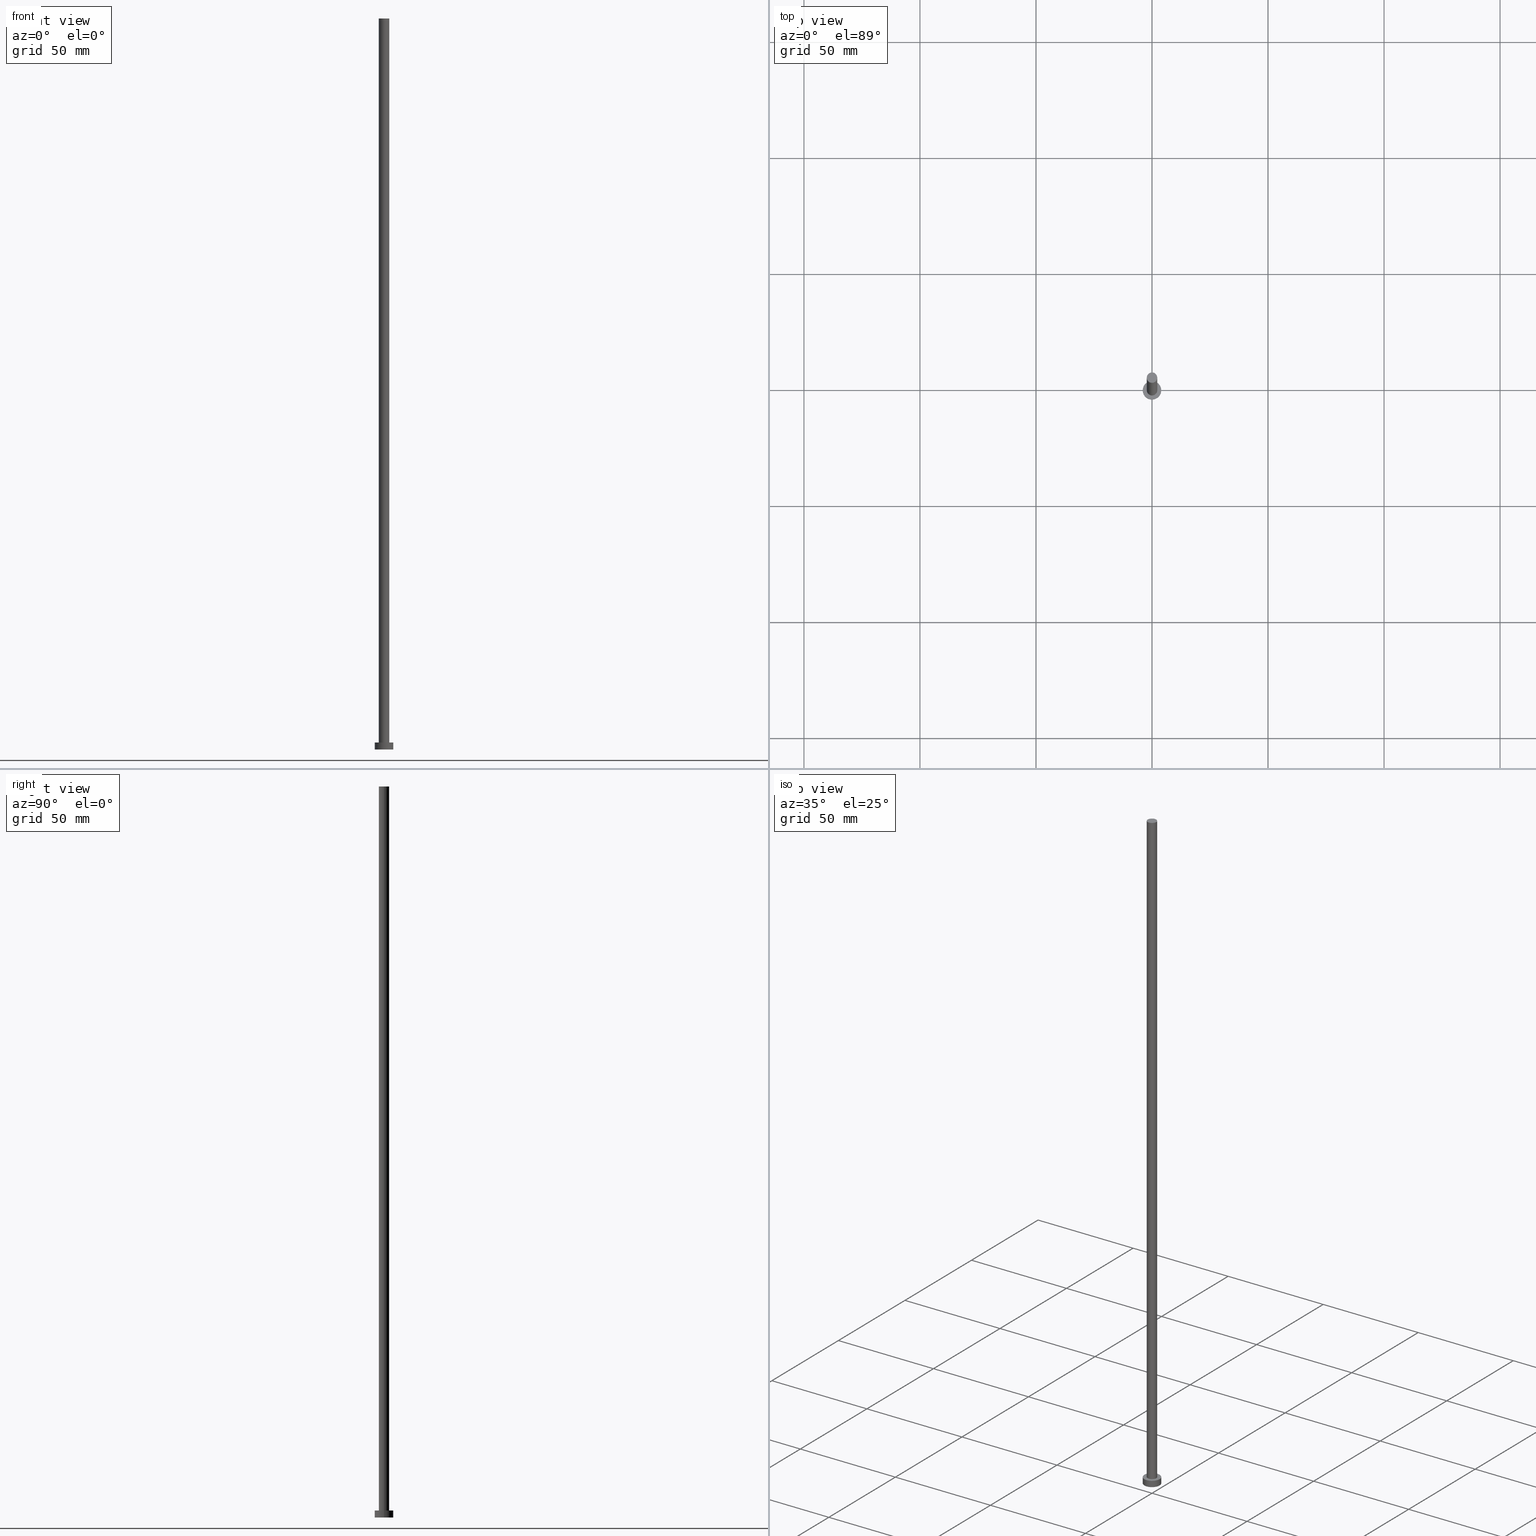
[diagram: canonical four-view strip — front | top / right | iso, engineering-drawing reading convention]
A machine part, canonical four-view strip (front | top / right | iso — engineering-drawing reading convention). The complete STEP part file that produces these views, byte-faithful:
ISO-10303-21;
HEADER;
FILE_DESCRIPTION (( 'STEP AP203' ),
    '1' );
FILE_NAME ('df20.STEP',
    '2023-02-13T16:06:10',
    ( '' ),
    ( '' ),
    'SwSTEP 2.0',
    'SolidWorks 2019',
    '' );
FILE_SCHEMA (( 'CONFIG_CONTROL_DESIGN' ));
ENDSEC;

DATA;
#1 = PERSON_AND_ORGANIZATION_ROLE ( 'creator' ) ;
#2 = ORIENTED_EDGE ( 'NONE', *, *, #96, .F. ) ;
#3 = VERTEX_POINT ( 'NONE', #112 ) ;
#4 = CC_DESIGN_PERSON_AND_ORGANIZATION_ASSIGNMENT ( #253, #198, ( #84 ) ) ;
#5 = DIRECTION ( 'NONE',  ( 1.000000000000000000, 0.000000000000000000, -0.000000000000000000 ) ) ;
#6 = APPROVAL_PERSON_ORGANIZATION ( #58, #195, #106 ) ;
#7 = DIRECTION ( 'NONE',  ( -0.000000000000000000, -0.000000000000000000, -1.000000000000000000 ) ) ;
#8 = ORIENTED_EDGE ( 'NONE', *, *, #80, .F. ) ;
#9 = DIRECTION ( 'NONE',  ( 0.000000000000000000, 0.000000000000000000, 1.000000000000000000 ) ) ;
#10 = VECTOR ( 'NONE', #14, 1000.000000000000000 ) ;
#11 = DIRECTION ( 'NONE',  ( 0.000000000000000000, 0.000000000000000000, 1.000000000000000000 ) ) ;
#12 = CARTESIAN_POINT ( 'NONE',  ( -2.250000000000000000, 0.000000000000000000, 315.0000000000000000 ) ) ;
#13 = FACE_OUTER_BOUND ( 'NONE', #109, .T. ) ;
#14 = DIRECTION ( 'NONE',  ( -0.000000000000000000, -0.000000000000000000, -1.000000000000000000 ) ) ;
#15 = AXIS2_PLACEMENT_3D ( 'NONE', #137, #235, #30 ) ;
#16 = CIRCLE ( 'NONE', #216, 4.000000000000000000 ) ;
#17 = EDGE_LOOP ( 'NONE', ( #83, #107, #42, #129 ) ) ;
#18 = APPROVAL_STATUS ( 'not_yet_approved' ) ;
#19 = AXIS2_PLACEMENT_3D ( 'NONE', #230, #187, #5 ) ;
#20 = ORIENTED_EDGE ( 'NONE', *, *, #159, .F. ) ;
#21 =( LENGTH_UNIT ( ) NAMED_UNIT ( * ) SI_UNIT ( .MILLI., .METRE. ) );
#22 = EDGE_LOOP ( 'NONE', ( #185, #186 ) ) ;
#23 = EDGE_CURVE ( 'NONE', #79, #3, #91, .T. ) ;
#24 = SHAPE_DEFINITION_REPRESENTATION ( #85, #169 ) ;
#25 = APPROVAL_PERSON_ORGANIZATION ( #223, #27, #204 ) ;
#26 = COORDINATED_UNIVERSAL_TIME_OFFSET ( 1, 0, .AHEAD. ) ;
#27 = APPROVAL ( #205, 'NEUR�EN�' ) ;
#28 = CYLINDRICAL_SURFACE ( 'NONE', #207, 4.000000000000000000 ) ;
#29 = DIRECTION ( 'NONE',  ( -0.000000000000000000, -0.000000000000000000, -1.000000000000000000 ) ) ;
#30 = DIRECTION ( 'NONE',  ( 1.000000000000000000, 0.000000000000000000, 0.000000000000000000 ) ) ;
#31 = CIRCLE ( 'NONE', #69, 2.250000000000000000 ) ;
#32 = AXIS2_PLACEMENT_3D ( 'NONE', #234, #249, #67 ) ;
#33 = UNCERTAINTY_MEASURE_WITH_UNIT (LENGTH_MEASURE( 1.000000000000000082E-05 ), #21, 'distance_accuracy_value', 'NONE');
#34 = DIRECTION ( 'NONE',  ( 1.000000000000000000, 0.000000000000000000, 0.000000000000000000 ) ) ;
#35 = CYLINDRICAL_SURFACE ( 'NONE', #146, 4.000000000000000000 ) ;
#36 = ADVANCED_FACE ( 'NONE', ( #86 ), #87, .F. ) ;
#37 = DIRECTION ( 'NONE',  ( -1.000000000000000000, 0.000000000000000000, 0.000000000000000000 ) ) ;
#38 = ADVANCED_FACE ( 'NONE', ( #88 ), #28, .T. ) ;
#39 =( NAMED_UNIT ( * ) PLANE_ANGLE_UNIT ( ) SI_UNIT ( $, .RADIAN. ) );
#40 = VECTOR ( 'NONE', #167, 1000.000000000000000 ) ;
#41 = SECURITY_CLASSIFICATION_LEVEL ( 'unclassified' ) ;
#42 = ORIENTED_EDGE ( 'NONE', *, *, #184, .T. ) ;
#43 = CALENDAR_DATE ( 2023, 13, 2 ) ;
#44 = VERTEX_POINT ( 'NONE', #170 ) ;
#45 = LOCAL_TIME ( 17, 6, 10.00000000000000000, #26 ) ;
#46 = PERSON_AND_ORGANIZATION ( #68, #163 ) ;
#47 = DATE_AND_TIME ( #82, #45 ) ;
#48 = ORIENTED_EDGE ( 'NONE', *, *, #245, .F. ) ;
#49 = ORIENTED_EDGE ( 'NONE', *, *, #113, .F. ) ;
#50 = PRODUCT_RELATED_PRODUCT_CATEGORY ( 'detail', '', ( #227 ) ) ;
#51 = LOCAL_TIME ( 17, 6, 10.00000000000000000, #76 ) ;
#52 = CARTESIAN_POINT ( 'NONE',  ( -4.000000000000000000, 0.000000000000000000, 3.000000000000000000 ) ) ;
#53 = DIRECTION ( 'NONE',  ( 0.000000000000000000, 0.000000000000000000, 1.000000000000000000 ) ) ;
#54 = CARTESIAN_POINT ( 'NONE',  ( 4.000000000000000000, 4.898587196589412829E-16, 3.000000000000000000 ) ) ;
#55 = CIRCLE ( 'NONE', #149, 4.000000000000000000 ) ;
#56 = CARTESIAN_POINT ( 'NONE',  ( 0.000000000000000000, 0.000000000000000000, 3.000000000000000000 ) ) ;
#57 = FACE_OUTER_BOUND ( 'NONE', #209, .T. ) ;
#58 = PERSON_AND_ORGANIZATION ( #68, #163 ) ;
#59 = EDGE_CURVE ( 'NONE', #44, #73, #152, .T. ) ;
#60 = MECHANICAL_CONTEXT ( 'NONE', #131, 'mechanical' ) ;
#61 = CLOSED_SHELL ( 'NONE', ( #108, #38, #220, #193, #36, #66, #154 ) ) ;
#62 = APPLICATION_PROTOCOL_DEFINITION ( 'international standard', 'config_control_design', 1994, #131 ) ;
#63 = ORIENTED_EDGE ( 'NONE', *, *, #23, .F. ) ;
#64 = DIRECTION ( 'NONE',  ( 1.000000000000000000, 0.000000000000000000, 0.000000000000000000 ) ) ;
#65 = CC_DESIGN_SECURITY_CLASSIFICATION ( #103, ( #84 ) ) ;
#66 = ADVANCED_FACE ( 'NONE', ( #13 ), #70, .T. ) ;
#67 = DIRECTION ( 'NONE',  ( 1.000000000000000000, 0.000000000000000000, -0.000000000000000000 ) ) ;
#68 = PERSON ( 'NEUR�EN�', 'NEUR�EN�', 'NEUR�EN�', ('NEUR�EN�'), ('NEUR�EN�'), ('NEUR�EN�') ) ;
#69 = AXIS2_PLACEMENT_3D ( 'NONE', #71, #194, #218 ) ;
#70 = CYLINDRICAL_SURFACE ( 'NONE', #118, 2.250000000000000000 ) ;
#71 = CARTESIAN_POINT ( 'NONE',  ( 0.000000000000000000, 0.000000000000000000, 315.0000000000000000 ) ) ;
#72 = CARTESIAN_POINT ( 'NONE',  ( -2.250000000000000000, 0.000000000000000000, 3.000000000000000000 ) ) ;
#73 = VERTEX_POINT ( 'NONE', #72 ) ;
#74 =( NAMED_UNIT ( * ) SI_UNIT ( $, .STERADIAN. ) SOLID_ANGLE_UNIT ( ) );
#75 = ORIENTED_EDGE ( 'NONE', *, *, #242, .T. ) ;
#76 = COORDINATED_UNIVERSAL_TIME_OFFSET ( 1, 0, .AHEAD. ) ;
#77 = DATE_TIME_ROLE ( 'classification_date' ) ;
#78 = DIRECTION ( 'NONE',  ( 0.000000000000000000, 0.000000000000000000, 1.000000000000000000 ) ) ;
#79 = VERTEX_POINT ( 'NONE', #232 ) ;
#80 = EDGE_CURVE ( 'NONE', #179, #228, #95, .T. ) ;
#81 = DATE_AND_TIME ( #239, #197 ) ;
#82 = CALENDAR_DATE ( 2023, 13, 2 ) ;
#83 = ORIENTED_EDGE ( 'NONE', *, *, #150, .F. ) ;
#84 = PRODUCT_DEFINITION_FORMATION_WITH_SPECIFIED_SOURCE ( 'LIBOVOLN�', '', #227, .NOT_KNOWN. ) ;
#85 = PRODUCT_DEFINITION_SHAPE ( 'NONE', 'NONE',  #92 ) ;
#86 = FACE_OUTER_BOUND ( 'NONE', #22, .T. ) ;
#87 = PLANE ( 'NONE',  #19 ) ;
#88 = FACE_OUTER_BOUND ( 'NONE', #229, .T. ) ;
#89 = CC_DESIGN_PERSON_AND_ORGANIZATION_ASSIGNMENT ( #219, #123, ( #84 ) ) ;
#90 = CC_DESIGN_APPROVAL ( #27, ( #92 ) ) ;
#91 = LINE ( 'NONE', #133, #40 ) ;
#92 = PRODUCT_DEFINITION ( 'NEZN�M�', '', #84, #155 ) ;
#93 = DIRECTION ( 'NONE',  ( 0.000000000000000000, 0.000000000000000000, 1.000000000000000000 ) ) ;
#94 = FACE_OUTER_BOUND ( 'NONE', #104, .T. ) ;
#95 = LINE ( 'NONE', #52, #236 ) ;
#96 = EDGE_CURVE ( 'NONE', #115, #179, #55, .T. ) ;
#97 = CARTESIAN_POINT ( 'NONE',  ( 0.000000000000000000, 0.000000000000000000, 3.000000000000000000 ) ) ;
#98 = CIRCLE ( 'NONE', #15, 2.250000000000000000 ) ;
#99 = MANIFOLD_SOLID_BREP ( 'P�idat vysunut�m3', #61 ) ;
#100 = DIRECTION ( 'NONE',  ( -1.000000000000000000, 0.000000000000000000, 0.000000000000000000 ) ) ;
#101 = COORDINATED_UNIVERSAL_TIME_OFFSET ( 1, 0, .AHEAD. ) ;
#102 = APPROVAL_STATUS ( 'not_yet_approved' ) ;
#103 = SECURITY_CLASSIFICATION ( '', '', #41 ) ;
#104 = EDGE_LOOP ( 'NONE', ( #183, #143 ) ) ;
#105 = ORIENTED_EDGE ( 'NONE', *, *, #184, .F. ) ;
#106 = APPROVAL_ROLE ( '' ) ;
#107 = ORIENTED_EDGE ( 'NONE', *, *, #23, .T. ) ;
#108 = ADVANCED_FACE ( 'NONE', ( #233 ), #117, .T. ) ;
#109 = EDGE_LOOP ( 'NONE', ( #63, #127, #224, #164 ) ) ;
#110 = CIRCLE ( 'NONE', #251, 2.250000000000000000 ) ;
#111 = CC_DESIGN_PERSON_AND_ORGANIZATION_ASSIGNMENT ( #145, #1, ( #92 ) ) ;
#112 = CARTESIAN_POINT ( 'NONE',  ( 2.250000000000000000, 2.755455298081544285E-16, 3.000000000000000000 ) ) ;
#113 = EDGE_CURVE ( 'NONE', #73, #3, #175, .T. ) ;
#114 = CARTESIAN_POINT ( 'NONE',  ( 0.000000000000000000, 0.000000000000000000, 3.000000000000000000 ) ) ;
#115 = VERTEX_POINT ( 'NONE', #54 ) ;
#116 = DIRECTION ( 'NONE',  ( 1.000000000000000000, 0.000000000000000000, -0.000000000000000000 ) ) ;
#117 = CYLINDRICAL_SURFACE ( 'NONE', #148, 2.250000000000000000 ) ;
#118 = AXIS2_PLACEMENT_3D ( 'NONE', #192, #158, #215 ) ;
#119 = CARTESIAN_POINT ( 'NONE',  ( 0.000000000000000000, 0.000000000000000000, 3.000000000000000000 ) ) ;
#120 = DIRECTION ( 'NONE',  ( -0.000000000000000000, -0.000000000000000000, -1.000000000000000000 ) ) ;
#121 = DIRECTION ( 'NONE',  ( 0.000000000000000000, 0.000000000000000000, 1.000000000000000000 ) ) ;
#122 = CC_DESIGN_APPROVAL ( #188, ( #103 ) ) ;
#123 = PERSON_AND_ORGANIZATION_ROLE ( 'creator' ) ;
#124 = CC_DESIGN_DATE_AND_TIME_ASSIGNMENT ( #81, #222, ( #92 ) ) ;
#125 = PERSON_AND_ORGANIZATION ( #68, #163 ) ;
#126 = DATE_AND_TIME ( #43, #51 ) ;
#127 = ORIENTED_EDGE ( 'NONE', *, *, #168, .F. ) ;
#128 = COORDINATED_UNIVERSAL_TIME_OFFSET ( 1, 0, .AHEAD. ) ;
#129 = ORIENTED_EDGE ( 'NONE', *, *, #59, .F. ) ;
#130 = CARTESIAN_POINT ( 'NONE',  ( 0.000000000000000000, 0.000000000000000000, 3.000000000000000000 ) ) ;
#131 = APPLICATION_CONTEXT ( 'configuration controlled 3d designs of mechanical parts and assemblies' ) ;
#132 = EDGE_LOOP ( 'NONE', ( #49, #105 ) ) ;
#133 = CARTESIAN_POINT ( 'NONE',  ( 2.250000000000000000, 2.755455298081544285E-16, 315.0000000000000000 ) ) ;
#134 = AXIS2_PLACEMENT_3D ( 'NONE', #250, #121, #142 ) ;
#135 = CARTESIAN_POINT ( 'NONE',  ( 0.000000000000000000, 0.000000000000000000, 3.000000000000000000 ) ) ;
#136 = FACE_OUTER_BOUND ( 'NONE', #161, .T. ) ;
#137 = CARTESIAN_POINT ( 'NONE',  ( 0.000000000000000000, 0.000000000000000000, 315.0000000000000000 ) ) ;
#138 = DIRECTION ( 'NONE',  ( 1.000000000000000000, 0.000000000000000000, 0.000000000000000000 ) ) ;
#139 = CARTESIAN_POINT ( 'NONE',  ( 0.000000000000000000, 0.000000000000000000, 315.0000000000000000 ) ) ;
#140 = APPROVAL_DATE_TIME ( #252, #195 ) ;
#141 = APPROVAL_DATE_TIME ( #126, #27 ) ;
#142 = DIRECTION ( 'NONE',  ( 1.000000000000000000, 0.000000000000000000, 0.000000000000000000 ) ) ;
#143 = ORIENTED_EDGE ( 'NONE', *, *, #96, .T. ) ;
#144 = DIRECTION ( 'NONE',  ( 0.000000000000000000, 0.000000000000000000, 1.000000000000000000 ) ) ;
#145 = PERSON_AND_ORGANIZATION ( #68, #163 ) ;
#146 = AXIS2_PLACEMENT_3D ( 'NONE', #97, #120, #37 ) ;
#147 = ORIENTED_EDGE ( 'NONE', *, *, #150, .T. ) ;
#148 = AXIS2_PLACEMENT_3D ( 'NONE', #139, #172, #100 ) ;
#149 = AXIS2_PLACEMENT_3D ( 'NONE', #135, #247, #34 ) ;
#150 = EDGE_CURVE ( 'NONE', #79, #44, #98, .T. ) ;
#151 = FACE_BOUND ( 'NONE', #132, .T. ) ;
#152 = LINE ( 'NONE', #12, #10 ) ;
#153 = PLANE ( 'NONE',  #32 ) ;
#154 = ADVANCED_FACE ( 'NONE', ( #136 ), #153, .T. ) ;
#155 = DESIGN_CONTEXT ( 'detailed design', #244, 'design' ) ;
#156 = DIRECTION ( 'NONE',  ( -0.000000000000000000, -0.000000000000000000, -1.000000000000000000 ) ) ;
#157 = LOCAL_TIME ( 17, 6, 10.00000000000000000, #226 ) ;
#158 = DIRECTION ( 'NONE',  ( -0.000000000000000000, -0.000000000000000000, -1.000000000000000000 ) ) ;
#159 = EDGE_CURVE ( 'NONE', #115, #203, #214, .T. ) ;
#160 = PERSON_AND_ORGANIZATION ( #68, #163 ) ;
#161 = EDGE_LOOP ( 'NONE', ( #174, #147 ) ) ;
#162 = VECTOR ( 'NONE', #29, 1000.000000000000000 ) ;
#163 = ORGANIZATION ( 'NEUR�EN�', 'NEUR�EN�', '' ) ;
#164 = ORIENTED_EDGE ( 'NONE', *, *, #113, .T. ) ;
#165 = CC_DESIGN_PERSON_AND_ORGANIZATION_ASSIGNMENT ( #46, #225, ( #227 ) ) ;
#166 = APPROVAL_DATE_TIME ( #47, #188 ) ;
#167 = DIRECTION ( 'NONE',  ( -0.000000000000000000, -0.000000000000000000, -1.000000000000000000 ) ) ;
#168 = EDGE_CURVE ( 'NONE', #44, #79, #31, .T. ) ;
#169 = ADVANCED_BREP_SHAPE_REPRESENTATION ( 'df20', ( #99, #243 ), #246 ) ;
#170 = CARTESIAN_POINT ( 'NONE',  ( -2.250000000000000000, 0.000000000000000000, 315.0000000000000000 ) ) ;
#171 = CARTESIAN_POINT ( 'NONE',  ( 0.000000000000000000, 0.000000000000000000, 3.000000000000000000 ) ) ;
#172 = DIRECTION ( 'NONE',  ( -0.000000000000000000, -0.000000000000000000, -1.000000000000000000 ) ) ;
#173 = CARTESIAN_POINT ( 'NONE',  ( -4.000000000000000000, 0.000000000000000000, 0.000000000000000000 ) ) ;
#174 = ORIENTED_EDGE ( 'NONE', *, *, #168, .T. ) ;
#175 = CIRCLE ( 'NONE', #211, 2.250000000000000000 ) ;
#176 = CIRCLE ( 'NONE', #181, 4.000000000000000000 ) ;
#177 = DIRECTION ( 'NONE',  ( 1.000000000000000000, 0.000000000000000000, 0.000000000000000000 ) ) ;
#178 = APPLICATION_PROTOCOL_DEFINITION ( 'international standard', 'config_control_design', 1994, #244 ) ;
#179 = VERTEX_POINT ( 'NONE', #191 ) ;
#180 = CALENDAR_DATE ( 2023, 13, 2 ) ;
#181 = AXIS2_PLACEMENT_3D ( 'NONE', #190, #93, #248 ) ;
#182 = CC_DESIGN_PERSON_AND_ORGANIZATION_ASSIGNMENT ( #125, #199, ( #103 ) ) ;
#183 = ORIENTED_EDGE ( 'NONE', *, *, #245, .T. ) ;
#184 = EDGE_CURVE ( 'NONE', #3, #73, #110, .T. ) ;
#185 = ORIENTED_EDGE ( 'NONE', *, *, #201, .F. ) ;
#186 = ORIENTED_EDGE ( 'NONE', *, *, #242, .F. ) ;
#187 = DIRECTION ( 'NONE',  ( 0.000000000000000000, 0.000000000000000000, 1.000000000000000000 ) ) ;
#188 = APPROVAL ( #102, 'NEUR�EN�' ) ;
#189 = ORIENTED_EDGE ( 'NONE', *, *, #80, .T. ) ;
#190 = CARTESIAN_POINT ( 'NONE',  ( 0.000000000000000000, 0.000000000000000000, 0.000000000000000000 ) ) ;
#191 = CARTESIAN_POINT ( 'NONE',  ( -4.000000000000000000, 0.000000000000000000, 3.000000000000000000 ) ) ;
#192 = CARTESIAN_POINT ( 'NONE',  ( 0.000000000000000000, 0.000000000000000000, 315.0000000000000000 ) ) ;
#193 = ADVANCED_FACE ( 'NONE', ( #151, #94 ), #217, .T. ) ;
#194 = DIRECTION ( 'NONE',  ( 0.000000000000000000, 0.000000000000000000, 1.000000000000000000 ) ) ;
#195 = APPROVAL ( #18, 'NEUR�EN�' ) ;
#196 = DIRECTION ( 'NONE',  ( -1.000000000000000000, 0.000000000000000000, 0.000000000000000000 ) ) ;
#197 = LOCAL_TIME ( 17, 6, 10.00000000000000000, #128 ) ;
#198 = PERSON_AND_ORGANIZATION_ROLE ( 'design_supplier' ) ;
#199 = PERSON_AND_ORGANIZATION_ROLE ( 'classification_officer' ) ;
#200 = ORIENTED_EDGE ( 'NONE', *, *, #159, .T. ) ;
#201 = EDGE_CURVE ( 'NONE', #228, #203, #176, .T. ) ;
#202 = CALENDAR_DATE ( 2023, 13, 2 ) ;
#203 = VERTEX_POINT ( 'NONE', #238 ) ;
#204 = APPROVAL_ROLE ( '' ) ;
#205 = APPROVAL_STATUS ( 'not_yet_approved' ) ;
#206 = APPROVAL_ROLE ( '' ) ;
#207 = AXIS2_PLACEMENT_3D ( 'NONE', #114, #7, #196 ) ;
#208 = CC_DESIGN_APPROVAL ( #195, ( #84 ) ) ;
#209 = EDGE_LOOP ( 'NONE', ( #20, #48, #189, #254 ) ) ;
#210 = CC_DESIGN_DATE_AND_TIME_ASSIGNMENT ( #255, #77, ( #103 ) ) ;
#211 = AXIS2_PLACEMENT_3D ( 'NONE', #119, #53, #177 ) ;
#212 = AXIS2_PLACEMENT_3D ( 'NONE', #171, #9, #116 ) ;
#213 = CARTESIAN_POINT ( 'NONE',  ( 4.000000000000000000, 4.898587196589412829E-16, 3.000000000000000000 ) ) ;
#214 = LINE ( 'NONE', #213, #162 ) ;
#215 = DIRECTION ( 'NONE',  ( -1.000000000000000000, 0.000000000000000000, 0.000000000000000000 ) ) ;
#216 = AXIS2_PLACEMENT_3D ( 'NONE', #130, #78, #241 ) ;
#217 = PLANE ( 'NONE',  #212 ) ;
#218 = DIRECTION ( 'NONE',  ( 1.000000000000000000, 0.000000000000000000, 0.000000000000000000 ) ) ;
#219 = PERSON_AND_ORGANIZATION ( #68, #163 ) ;
#220 = ADVANCED_FACE ( 'NONE', ( #57 ), #35, .T. ) ;
#221 = APPROVAL_PERSON_ORGANIZATION ( #160, #188, #206 ) ;
#222 = DATE_TIME_ROLE ( 'creation_date' ) ;
#223 = PERSON_AND_ORGANIZATION ( #68, #163 ) ;
#224 = ORIENTED_EDGE ( 'NONE', *, *, #59, .T. ) ;
#225 = PERSON_AND_ORGANIZATION_ROLE ( 'design_owner' ) ;
#226 = COORDINATED_UNIVERSAL_TIME_OFFSET ( 1, 0, .AHEAD. ) ;
#227 = PRODUCT ( 'df20', 'df20', '', ( #60 ) ) ;
#228 = VERTEX_POINT ( 'NONE', #173 ) ;
#229 = EDGE_LOOP ( 'NONE', ( #2, #200, #75, #8 ) ) ;
#230 = CARTESIAN_POINT ( 'NONE',  ( 0.000000000000000000, 0.000000000000000000, 0.000000000000000000 ) ) ;
#231 = LOCAL_TIME ( 17, 6, 10.00000000000000000, #101 ) ;
#232 = CARTESIAN_POINT ( 'NONE',  ( 2.250000000000000000, 2.755455298081544285E-16, 315.0000000000000000 ) ) ;
#233 = FACE_OUTER_BOUND ( 'NONE', #17, .T. ) ;
#234 = CARTESIAN_POINT ( 'NONE',  ( 0.000000000000000000, 0.000000000000000000, 315.0000000000000000 ) ) ;
#235 = DIRECTION ( 'NONE',  ( 0.000000000000000000, 0.000000000000000000, 1.000000000000000000 ) ) ;
#236 = VECTOR ( 'NONE', #156, 1000.000000000000000 ) ;
#237 = CIRCLE ( 'NONE', #134, 4.000000000000000000 ) ;
#238 = CARTESIAN_POINT ( 'NONE',  ( 4.000000000000000000, 4.898587196589412829E-16, 0.000000000000000000 ) ) ;
#239 = CALENDAR_DATE ( 2023, 13, 2 ) ;
#240 = CARTESIAN_POINT ( 'NONE',  ( 0.000000000000000000, 0.000000000000000000, 0.000000000000000000 ) ) ;
#241 = DIRECTION ( 'NONE',  ( 1.000000000000000000, 0.000000000000000000, 0.000000000000000000 ) ) ;
#242 = EDGE_CURVE ( 'NONE', #203, #228, #237, .T. ) ;
#243 = AXIS2_PLACEMENT_3D ( 'NONE', #240, #144, #64 ) ;
#244 = APPLICATION_CONTEXT ( 'configuration controlled 3d designs of mechanical parts and assemblies' ) ;
#245 = EDGE_CURVE ( 'NONE', #179, #115, #16, .T. ) ;
#246 =( GEOMETRIC_REPRESENTATION_CONTEXT ( 3 ) GLOBAL_UNCERTAINTY_ASSIGNED_CONTEXT ( ( #33 ) ) GLOBAL_UNIT_ASSIGNED_CONTEXT ( ( #21, #39, #74 ) ) REPRESENTATION_CONTEXT ( 'NONE', 'WORKASPACE' ) );
#247 = DIRECTION ( 'NONE',  ( 0.000000000000000000, 0.000000000000000000, 1.000000000000000000 ) ) ;
#248 = DIRECTION ( 'NONE',  ( 1.000000000000000000, 0.000000000000000000, 0.000000000000000000 ) ) ;
#249 = DIRECTION ( 'NONE',  ( 0.000000000000000000, 0.000000000000000000, 1.000000000000000000 ) ) ;
#250 = CARTESIAN_POINT ( 'NONE',  ( 0.000000000000000000, 0.000000000000000000, 0.000000000000000000 ) ) ;
#251 = AXIS2_PLACEMENT_3D ( 'NONE', #56, #11, #138 ) ;
#252 = DATE_AND_TIME ( #202, #157 ) ;
#253 = PERSON_AND_ORGANIZATION ( #68, #163 ) ;
#254 = ORIENTED_EDGE ( 'NONE', *, *, #201, .T. ) ;
#255 = DATE_AND_TIME ( #180, #231 ) ;
ENDSEC;
END-ISO-10303-21;
